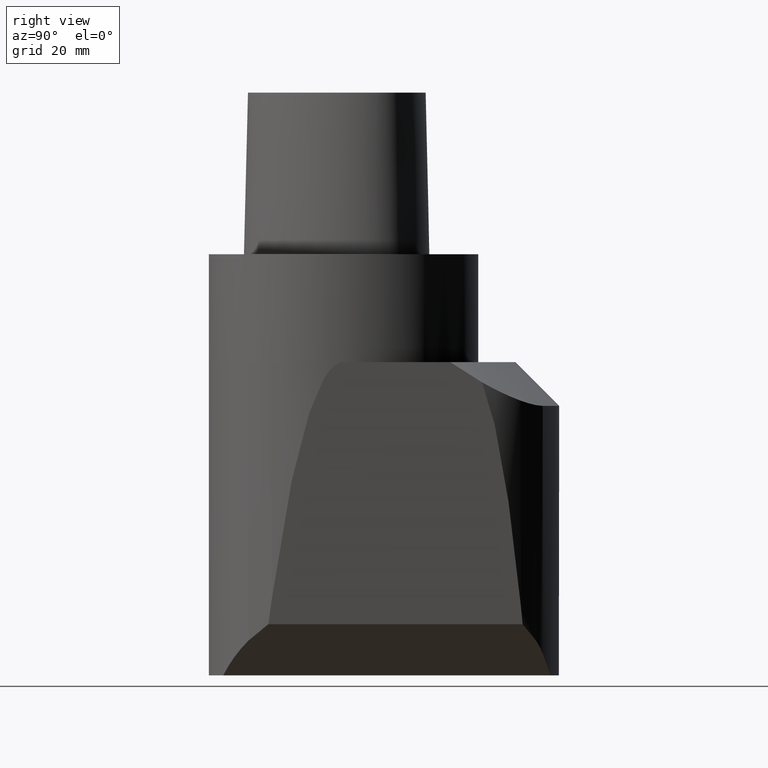
[diagram: clean part render]
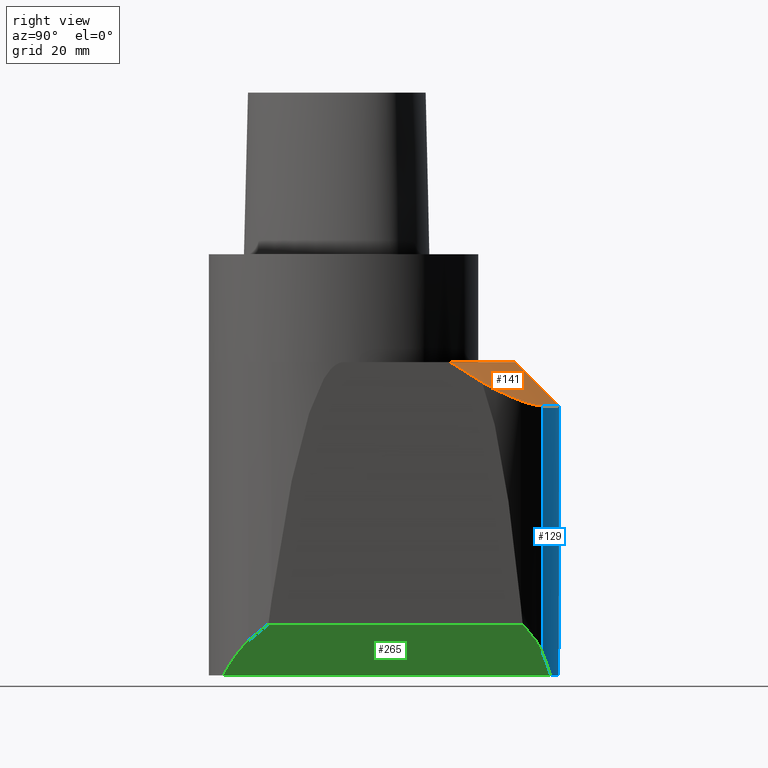
[diagram: same view with three faces highlighted in distinct colors, each labeled with its STEP entity id]
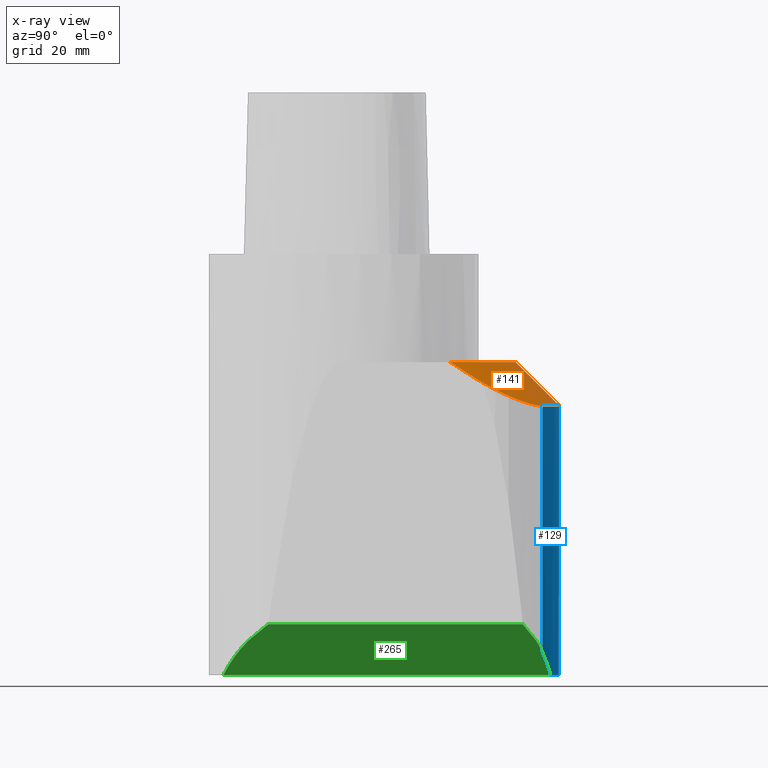
[diagram: x-ray of the same camera — body ghosted, the three highlighted faces saturated]
A machine part, right view with three faces highlighted in distinct colors.
The next image is the same camera in x-ray (body ghosted, the three faces saturated) — at least one of them is partly hidden behind the body in this view.
Their STEP definitions:

[orange] entity #141 — the highlighted conical surface has half-angle 45 deg.
#122=EDGE_CURVE('240[2]',#334,#327,#335,.T.);
#141=ADVANCED_FACE('240[2]',(#363),#364,.T.);
#143=EDGE_CURVE('240[2]',#366,#310,#367,.T.);
#154=EDGE_CURVE('240[2]',#382,#383,#384,.T.);
#159=EDGE_CURVE('240[2]',#334,#390,#391,.T.);
#189=EDGE_CURVE('240[2]',#430,#366,#431,.T.);
#191=EDGE_CURVE('240[2]',#340,#430,#433,.T.);
#239=EDGE_CURVE('240[2]',#383,#340,#491,.T.);
#241=EDGE_CURVE('240[2]',#327,#382,#493,.T.);
#255=EDGE_CURVE('240[2]',#310,#390,#510,.T.);
#310=VERTEX_POINT('',#566);
#327=VERTEX_POINT('',#638);
#334=VERTEX_POINT('',#648);
#335=B_SPLINE_CURVE_WITH_KNOTS('',3,(#649,#650,#651,#652,#653,#654,#655,#656,#657,#658,#659,#660,#661,#662,#663,#664,#665,#666,#667,#668,#669,#670),.UNSPECIFIED.,.F.,.F.,(4,2,2,2,2,2,2,2,2,2,4),(36.4231485541518,36.4233471363253,38.4603021409084,40.4972571454915,42.5342121500746,44.5711671546576,48.6450771638238,52.71898717299,55.2349505604476,57.7509139479051,58.3140038373045),.UNSPECIFIED.);
#340=VERTEX_POINT('',#677);
#363=FACE_OUTER_BOUND('',#722,.T.);
#364=CONICAL_SURFACE('',#723,57.5000000000002,0.785398163397456);
#366=VERTEX_POINT('',#726);
#367=B_SPLINE_CURVE_WITH_KNOTS('',3,(#727,#728,#729,#730,#731,#732),.UNSPECIFIED.,.F.,.F.,(4,2,4),(7.79050749938835E-014,1.69320901081214,3.66958667680222),.UNSPECIFIED.);
#382=VERTEX_POINT('',#813);
#383=VERTEX_POINT('',#814);
#384=(B_SPLINE_CURVE(2,(#816,#817,#818),.UNSPECIFIED.,.F.,.F.)B_SPLINE_CURVE_WITH_KNOTS((3,3),(16.6588998082918,22.4728619832828),.UNSPECIFIED.)RATIONAL_B_SPLINE_CURVE((1.00496236271585,1.00334711456662,1.0))BOUNDED_CURVE()REPRESENTATION_ITEM('')GEOMETRIC_REPRESENTATION_ITEM()CURVE());
#390=VERTEX_POINT('',#832);
#391=CIRCLE('',#833,64.0000000000002);
#430=VERTEX_POINT('',#901);
#431=B_SPLINE_CURVE_WITH_KNOTS('',3,(#902,#903,#904,#905,#906,#907,#908,#909,#910,#911,#912,#913,#914,#915),.UNSPECIFIED.,.F.,.F.,(4,2,2,2,2,2,4),(11.9216219311238,12.5798861849235,15.0958634219082,17.6118406588929,20.1278178958776,24.2017614135647,25.6110209828302),.UNSPECIFIED.);
#433=B_SPLINE_CURVE_WITH_KNOTS('',3,(#918,#919,#920,#921,#922,#923,#924,#925,#926),.UNSPECIFIED.,.F.,.F.,(4,3,2,4),(-3.41529228969309,0.0,3.78255755203956,7.76402577174886),.UNSPECIFIED.);
#491=CIRCLE('',#1458,51.0000000000002);
#493=B_SPLINE_CURVE_WITH_KNOTS('',3,(#1461,#1462,#1463,#1464,#1465,#1466,#1467,#1468),.UNSPECIFIED.,.F.,.F.,(4,2,2,4),(58.3216321938798,60.2734027898837,62.7896201586019,66.5642438074857),.UNSPECIFIED.);
#510=B_SPLINE_CURVE_WITH_KNOTS('',3,(#1493,#1494,#1495,#1496,#1497,#1498),.UNSPECIFIED.,.F.,.F.,(4,2,4),(32.3828474737101,34.3866202077822,36.4235919666244),.UNSPECIFIED.);
#566=CARTESIAN_POINT('',(28.29054136469,57.1745486429694,-44.790937783002));
#638=CARTESIAN_POINT('',(-38.8650636045326,43.4470624511728,-39.2935708686709));
#648=CARTESIAN_POINT('',(-24.6153846153862,59.0769230769235,-45.0000000000037));
#649=CARTESIAN_POINT('',(-24.6153846153767,59.0769230769236,-45.0000000000017));
#650=CARTESIAN_POINT('',(-24.615445717908,59.0768976178853,-45.0000000003234));
#651=CARTESIAN_POINT('',(-24.6155068202378,59.0768721586448,-45.0000000004843));
#652=CARTESIAN_POINT('',(-25.2423224980849,58.815696676964,-45.0000000004843));
#653=CARTESIAN_POINT('',(-25.868907106102,58.5245155998732,-44.9830750109901));
#654=CARTESIAN_POINT('',(-27.1080441426649,57.8833838449597,-44.9128061454171));
#655=CARTESIAN_POINT('',(-27.7205976650058,57.5334350745424,-44.8594641544699));
#656=CARTESIAN_POINT('',(-28.9194143070726,56.7786561725043,-44.7153968545533));
#657=CARTESIAN_POINT('',(-29.5057468973081,56.373786006701,-44.6246645698134));
#658=CARTESIAN_POINT('',(-30.6416537619001,55.5152931372474,-44.406338881082));
#659=CARTESIAN_POINT('',(-31.1912299627898,55.0616730052511,-44.2787453883167));
#660=CARTESIAN_POINT('',(-32.7717279264879,53.6401626190047,-43.8436872145184));
#661=CARTESIAN_POINT('',(-33.735266040463,52.6091211913375,-43.482711842329));
#662=CARTESIAN_POINT('',(-35.4358083829579,50.4655013336937,-42.6503431654704));
#663=CARTESIAN_POINT('',(-36.1729075321799,49.3530232473167,-42.1788853748937));
#664=CARTESIAN_POINT('',(-37.1738417149353,47.5727964473681,-41.3701317998467));
#665=CARTESIAN_POINT('',(-37.526737246582,46.8704259423907,-41.0383084299897));
#666=CARTESIAN_POINT('',(-38.1658184936294,45.4321058329714,-40.3313709975266));
#667=CARTESIAN_POINT('',(-38.4520130564005,44.6961607611856,-39.956255711054));
#668=CARTESIAN_POINT('',(-38.7583878011144,43.7826820531024,-39.4731787299872));
#669=CARTESIAN_POINT('',(-38.812622721241,43.6150992665946,-39.3838502520183));
#670=CARTESIAN_POINT('',(-38.8650523634497,43.4470613336168,-39.2935664207632));
#677=CARTESIAN_POINT('',(39.9999999999246,31.638584039223,-32.0000000000071));
#722=EDGE_LOOP('',(#1696,#1697,#1698,#1699,#1700,#1701,#1702,#1703,#1704));
#723=AXIS2_PLACEMENT_3D('',#1705,#1706,#1707);
#726=CARTESIAN_POINT('',(33.6636013357642,52.6333996928742,-43.4780987076547));
#727=CARTESIAN_POINT('',(33.6636013357642,52.6333996928742,-43.4780987076546));
#728=CARTESIAN_POINT('',(33.3011070229559,53.0401429254736,-43.6254369796464));
#729=CARTESIAN_POINT('',(32.6586001865985,53.7396399868975,-43.8735809754009));
#730=CARTESIAN_POINT('',(30.6810749666254,55.5227612965714,-44.4203078056542));
#731=CARTESIAN_POINT('',(29.5261634582089,56.3989908343032,-44.6438048196785));
#732=CARTESIAN_POINT('',(28.2905413646901,57.1745486429695,-44.7909377830022));
#813=CARTESIAN_POINT('',(-40.0000000000009,36.0000000000009,-34.8144961882987));
#814=CARTESIAN_POINT('',(-40.0000000000009,31.6385840391118,-32.0000000000028));
#816=CARTESIAN_POINT('',(-40.0000000000009,36.0000000000022,-34.8144961882996));
#817=CARTESIAN_POINT('',(-40.0000000000009,33.76073528817,-33.3165070713171));
#818=CARTESIAN_POINT('',(-40.0000000000009,31.6385840391112,-32.0000000000024));
#832=CARTESIAN_POINT('',(24.6153846153838,59.0769230769239,-45.000000000003));
#833=AXIS2_PLACEMENT_3D('',#1727,#1728,#1729);
#901=CARTESIAN_POINT('',(39.476915664123,41.0872978654076,-37.978881317847));
#902=CARTESIAN_POINT('',(39.4769022895486,41.0872981949386,-37.9788759307843));
#903=CARTESIAN_POINT('',(39.4354348908527,41.2868410700237,-38.0940341171368));
#904=CARTESIAN_POINT('',(39.3914564973516,41.4862241474422,-38.2080813814552));
#905=CARTESIAN_POINT('',(39.1672377574568,42.4463434906348,-38.752402598454));
#906=CARTESIAN_POINT('',(38.9527058004631,43.2033128153989,-39.1667904446922));
#907=CARTESIAN_POINT('',(38.4520036291537,44.6961690596028,-39.9562557749922));
#908=CARTESIAN_POINT('',(38.1658035792832,45.4321180306143,-40.3313706686812));
#909=CARTESIAN_POINT('',(37.526711383441,46.8704452652149,-41.0383072749407));
#910=CARTESIAN_POINT('',(37.1738103901352,47.5728189961114,-41.3701302113944));
#911=CARTESIAN_POINT('',(36.1728604857019,49.3530563328857,-42.1788840109718));
#912=CARTESIAN_POINT('',(35.4357500216311,50.4655415513507,-42.65034227017));
#913=CARTESIAN_POINT('',(34.291336774141,51.9081206667694,-43.2104936296004));
#914=CARTESIAN_POINT('',(33.9836529399982,52.2740050965731,-43.3478539634096));
#915=CARTESIAN_POINT('',(33.6633732594997,52.6332477042892,-43.4779569167343));
#918=CARTESIAN_POINT('',(39.9999999999246,31.638584039223,-32.0000000000071));
#919=CARTESIAN_POINT('',(39.949718347097,32.6285804211783,-32.5747219140447));
#920=CARTESIAN_POINT('',(39.8983594352101,33.6088729848618,-33.1617569553148));
#921=CARTESIAN_POINT('',(39.8462509803595,34.5776697358056,-33.7573593117445));
#922=CARTESIAN_POINT('',(39.7885390180173,35.6506465568507,-34.4170100840487));
#923=CARTESIAN_POINT('',(39.7295165732606,36.7167744274686,-35.0916397146551));
#924=CARTESIAN_POINT('',(39.6064662189535,38.8855882901264,-36.4981117002626));
#925=CARTESIAN_POINT('',(39.5421125400492,39.9912256680045,-37.2336776160171));
#926=CARTESIAN_POINT('',(39.4769156641219,41.0872978654076,-37.9788813178464));
#1458=AXIS2_PLACEMENT_3D('',#1841,#1842,#1843);
#1461=CARTESIAN_POINT('',(-38.8650523250574,43.4470613296989,-39.2935664060147));
#1462=CARTESIAN_POINT('',(-39.0467786168551,42.8646074249701,-38.9806204209285));
#1463=CARTESIAN_POINT('',(-39.2068174045358,42.2766865867339,-38.6561986316717));
#1464=CARTESIAN_POINT('',(-39.5224706462489,40.9252476761732,-37.8900422133055));
#1465=CARTESIAN_POINT('',(-39.6634266687771,40.1601217882488,-37.4415101156143));
#1466=CARTESIAN_POINT('',(-39.9249772408726,38.2534097911671,-36.2853945824886));
#1467=CARTESIAN_POINT('',(-39.9995566059418,37.1139766974781,-35.5594502190855));
#1468=CARTESIAN_POINT('',(-39.9998170923362,36.0000488887121,-34.8144230283649));
#1493=CARTESIAN_POINT('',(28.2905413103789,57.1745485658759,-44.7909377332614));
#1494=CARTESIAN_POINT('',(27.7004760991929,57.5449079564465,-44.8611981268565));
#1495=CARTESIAN_POINT('',(27.0977874140493,57.8886829690269,-44.9133788084247));
#1496=CARTESIAN_POINT('',(25.8687358882004,58.5245913605404,-44.9830750201391));
#1497=CARTESIAN_POINT('',(25.2421451565657,58.8157728514315,-45.000000000003));
#1498=CARTESIAN_POINT('',(24.6153846153835,59.076923076924,-45.000000000003));
#1696=ORIENTED_EDGE('',*,*,#191,.T.);
#1697=ORIENTED_EDGE('',*,*,#189,.T.);
#1698=ORIENTED_EDGE('',*,*,#143,.T.);
#1699=ORIENTED_EDGE('',*,*,#255,.T.);
#1700=ORIENTED_EDGE('',*,*,#159,.F.);
#1701=ORIENTED_EDGE('',*,*,#122,.T.);
#1702=ORIENTED_EDGE('',*,*,#241,.T.);
#1703=ORIENTED_EDGE('',*,*,#154,.T.);
#1704=ORIENTED_EDGE('',*,*,#239,.T.);
#1705=CARTESIAN_POINT('',(2.35744508835881E-015,-1.13686837721616E-013,-38.5000000000025));
#1706=DIRECTION('',(6.12323399573677E-017,-3.0538777245272E-015,-1.0));
#1707=DIRECTION('',(1.82168926285713E-031,1.0,-3.0538777245272E-015));
#1727=CARTESIAN_POINT('',(2.7554552980817E-015,-1.70530256582424E-013,-45.0000000000025));
#1728=DIRECTION('',(6.12323399573677E-017,-3.0538777245272E-015,-1.0));
#1729=DIRECTION('',(1.82168926285713E-031,1.0,-3.0538777245272E-015));
#1841=CARTESIAN_POINT('',(1.95943487863593E-015,-1.13686837721616E-013,-32.0000000000026));
#1842=DIRECTION('',(6.12323399573676E-017,-3.0538777245272E-015,-1.0));
#1843=DIRECTION('',(1.82168926285713E-031,1.0,-3.0538777245272E-015));

[blue] entity #129 — the highlighted cylindrical surface (partial cylindrical patch) has radius 64 mm, axis along (0, -0, -1).
#129=ADVANCED_FACE('240[2]',(#344),#345,.T.);
#159=EDGE_CURVE('240[2]',#334,#390,#391,.T.);
#161=EDGE_CURVE('240[2]',#393,#352,#394,.T.);
#182=EDGE_CURVE('240[2]',#393,#334,#421,.T.);
#187=EDGE_CURVE('240[2]',#317,#352,#428,.T.);
#223=EDGE_CURVE('240[2]',#317,#390,#473,.T.);
#317=VERTEX_POINT('',#576);
#334=VERTEX_POINT('',#648);
#344=FACE_OUTER_BOUND('',#683,.T.);
#345=CYLINDRICAL_SURFACE('',#684,64.0000000000003);
#352=VERTEX_POINT('',#693);
#390=VERTEX_POINT('',#832);
#391=CIRCLE('',#833,64.0000000000002);
#393=VERTEX_POINT('',#836);
#394=CIRCLE('',#837,64.0000000000005);
#421=LINE('',#888,#889);
#428=ELLIPSE('',#898,90.5096678554264,64.0000000000003);
#473=LINE('',#1047,#1048);
#576=CARTESIAN_POINT('',(24.6153846153831,59.0769230769245,-118.384615337473));
#648=CARTESIAN_POINT('',(-24.6153846153862,59.0769230769235,-45.0000000000037));
#683=EDGE_LOOP('',(#1679,#1680,#1681,#1682,#1683));
#684=AXIS2_PLACEMENT_3D('',#1684,#1685,#1686);
#693=CARTESIAN_POINT('',(17.9999999329058,61.4166101508002,-125.000000000003));
#832=CARTESIAN_POINT('',(24.6153846153838,59.0769230769239,-45.000000000003));
#833=AXIS2_PLACEMENT_3D('',#1727,#1728,#1729);
#836=CARTESIAN_POINT('',(-24.6153846153862,59.0769230769235,-125.000000000003));
#837=AXIS2_PLACEMENT_3D('',#1730,#1731,#1732);
#888=CARTESIAN_POINT('',(-24.6153846153862,59.0769230769235,-125.000000000003));
#889=VECTOR('',#1764,1.0);
#898=AXIS2_PLACEMENT_3D('',#1771,#1772,#1773);
#1047=CARTESIAN_POINT('',(24.6153846153831,59.0769230769245,-125.000000000003));
#1048=VECTOR('',#1819,1.0);
#1679=ORIENTED_EDGE('',*,*,#182,.T.);
#1680=ORIENTED_EDGE('',*,*,#159,.T.);
#1681=ORIENTED_EDGE('',*,*,#223,.F.);
#1682=ORIENTED_EDGE('',*,*,#187,.T.);
#1683=ORIENTED_EDGE('',*,*,#161,.F.);
#1684=CARTESIAN_POINT('',(5.2047488963764E-015,-2.8421709430404E-013,-85.0000000000025));
#1685=DIRECTION('',(6.12323399573676E-017,-3.0538777245272E-015,-1.0));
#1686=DIRECTION('',(1.82168926285713E-031,1.0,-3.0538777245272E-015));
#1727=CARTESIAN_POINT('',(2.7554552980817E-015,-1.70530256582424E-013,-45.0000000000025));
#1728=DIRECTION('',(6.12323399573677E-017,-3.0538777245272E-015,-1.0));
#1729=DIRECTION('',(1.82168926285713E-031,1.0,-3.0538777245272E-015));
#1730=CARTESIAN_POINT('',(7.65404249467111E-015,-3.97903932025656E-013,-125.000000000003));
#1731=DIRECTION('',(6.12323399573676E-017,-3.0538777245272E-015,-1.0));
#1732=DIRECTION('',(1.82168926285713E-031,1.0,-3.0538777245272E-015));
#1764=DIRECTION('',(-6.12323399573677E-017,-1.22464679914735E-016,1.0));
#1771=CARTESIAN_POINT('',(8.75622460647214E-015,-4.54747350886464E-013,-142.999999878635));
#1772=DIRECTION('',(-0.707106780120515,-8.65956057541007E-017,0.70710678225258));
#1773=DIRECTION('',(0.70710678225258,2.1594176446722E-015,0.707106780120515));
#1819=DIRECTION('',(-6.12323399573677E-017,-1.22464679914735E-016,1.0));

[green] entity #265 — the highlighted planar face has unit normal (-0.7071, -0, 0.7071).
#112=EDGE_CURVE('240[2]',#309,#317,#318,.T.);
#134=EDGE_CURVE('240[2]',#352,#353,#354,.T.);
#176=EDGE_CURVE('240[2]',#353,#414,#415,.T.);
#178=EDGE_CURVE('240[2]',#414,#411,#417,.T.);
#187=EDGE_CURVE('240[2]',#317,#352,#428,.T.);
#195=EDGE_CURVE('240[2]',#309,#438,#439,.F.);
#208=EDGE_CURVE('240[2]',#411,#438,#456,.F.);
#265=ADVANCED_FACE('240[2]',(#522),#523,.F.);
#309=VERTEX_POINT('',#565);
#317=VERTEX_POINT('',#576);
#318=ELLIPSE('',#577,35.3553390060258,25.0);
#352=VERTEX_POINT('',#693);
#353=VERTEX_POINT('',#694);
#354=LINE('',#695,#696);
#411=VERTEX_POINT('',#859);
#414=VERTEX_POINT('',#870);
#415=ELLIPSE('',#871,56.5685424096412,40.0);
#417=B_SPLINE_CURVE_WITH_KNOTS('',3,(#874,#875,#876,#877,#878,#879,#880,#881),.UNSPECIFIED.,.F.,.F.,(4,2,2,4),(182.745728297254,183.936771665328,185.787715841536,186.29989633861),.UNSPECIFIED.);
#428=ELLIPSE('',#898,90.5096678554264,64.0000000000003);
#438=VERTEX_POINT('',#934);
#439=B_SPLINE_CURVE_WITH_KNOTS('',3,(#935,#936,#937,#938,#939,#940,#941,#942,#943,#944,#945,#946),.UNSPECIFIED.,.F.,.F.,(4,2,2,2,2,4),(179.824661305299,179.955119809875,181.332118004802,183.966017951121,184.086968040956,184.087166453046),.UNSPECIFIED.);
#456=LINE('',#1022,#1023);
#522=FACE_OUTER_BOUND('',#1610,.T.);
#523=PLANE('',#1611);
#565=CARTESIAN_POINT('',(28.29054136469,57.1745486429694,-114.709458599247));
#576=CARTESIAN_POINT('',(24.6153846153831,59.0769230769245,-118.384615337473));
#577=AXIS2_PLACEMENT_3D('',#1666,#1667,#1668);
#693=CARTESIAN_POINT('',(17.9999999329058,61.4166101508002,-125.000000000003));
#694=CARTESIAN_POINT('',(17.9999999329061,-35.721142232791,-125.000000000003));
#695=CARTESIAN_POINT('',(17.9999999329063,-65.1225706344801,-125.000000000003));
#696=VECTOR('',#1693,1.0);
#859=CARTESIAN_POINT('',(33.1927473655551,-22.3213156473373,-109.807252613163));
#870=CARTESIAN_POINT('',(28.2905413646907,-28.2779997399503,-114.709458599246));
#871=AXIS2_PLACEMENT_3D('',#1760,#1761,#1762);
#874=CARTESIAN_POINT('',(28.2905413646907,-28.2779997399503,-114.709458599246));
#875=CARTESIAN_POINT('',(28.5598027757183,-28.0086189083271,-114.440197189031));
#876=CARTESIAN_POINT('',(29.0604000396918,-27.5020726044087,-113.939599927107));
#877=CARTESIAN_POINT('',(30.6684296191253,-25.7204981679521,-112.331570352522));
#878=CARTESIAN_POINT('',(31.5961979475133,-24.5753728153209,-111.403802026395));
#879=CARTESIAN_POINT('',(32.7185357376522,-23.0145741105321,-110.28146423964));
#880=CARTESIAN_POINT('',(32.9580480758712,-22.6702994512538,-110.041951902139));
#881=CARTESIAN_POINT('',(33.1927473655551,-22.3213156473373,-109.807252613163));
#898=AXIS2_PLACEMENT_3D('',#1771,#1772,#1773);
#934=CARTESIAN_POINT('',(33.1927473655523,53.147149727207,-109.807252613168));
#935=CARTESIAN_POINT('',(33.1927473655523,53.147149727207,-109.807252613168));
#936=CARTESIAN_POINT('',(33.1498259533869,53.1926770678901,-109.850174025204));
#937=CARTESIAN_POINT('',(33.1049088959374,53.2399815383754,-109.895091082516));
#938=CARTESIAN_POINT('',(32.5615243132467,53.8075092873478,-110.438475663568));
#939=CARTESIAN_POINT('',(32.0578685368317,54.2896110499142,-110.942131438464));
#940=CARTESIAN_POINT('',(30.5377439078639,55.6299899180698,-112.462256062849));
#941=CARTESIAN_POINT('',(29.4994959095945,56.4046772962459,-113.500504057988));
#942=CARTESIAN_POINT('',(28.3885253405872,57.1128093519813,-114.611474623645));
#943=CARTESIAN_POINT('',(28.3396836585067,57.143702924702,-114.660316305579));
#944=CARTESIAN_POINT('',(28.2907018061625,57.1744479386976,-114.709298157775));
#945=CARTESIAN_POINT('',(28.2906215855096,57.1744982910994,-114.709378378428));
#946=CARTESIAN_POINT('',(28.29054136469,57.1745486429694,-114.709458599247));
#1022=CARTESIAN_POINT('',(33.1927473655551,-162.24514126896,-109.807252613163));
#1023=VECTOR('',#1797,1.0);
#1610=EDGE_LOOP('',(#1880,#1881,#1882,#1883,#1884,#1885,#1886));
#1611=AXIS2_PLACEMENT_3D('',#1887,#1888,#1889);
#1666=CARTESIAN_POINT('',(14.9999999999992,36.0000000000009,-127.999999923864));
#1667=DIRECTION('',(-0.707106780120515,-8.65956057541007E-017,0.70710678225258));
#1668=DIRECTION('',(-0.70710678225258,1.73191211247099E-016,-0.707106780120515));
#1693=DIRECTION('',(3.5527136895126E-015,-1.0,3.43024899888574E-015));
#1760=CARTESIAN_POINT('',(-8.43895058305648E-013,8.5265128291212E-013,-142.999999878636));
#1761=DIRECTION('',(-0.707106780120515,-8.65956057541007E-017,0.70710678225258));
#1762=DIRECTION('',(-0.70710678225258,1.73191211247099E-016,-0.707106780120515));
#1771=CARTESIAN_POINT('',(8.75622460647214E-015,-4.54747350886464E-013,-142.999999878635));
#1772=DIRECTION('',(-0.707106780120515,-8.65956057541007E-017,0.70710678225258));
#1773=DIRECTION('',(0.70710678225258,2.1594176446722E-015,0.707106780120515));
#1797=DIRECTION('',(-4.7939441633458E-032,-1.0,-1.22464679914735E-016));
#1880=ORIENTED_EDGE('',*,*,#176,.F.);
#1881=ORIENTED_EDGE('',*,*,#134,.F.);
#1882=ORIENTED_EDGE('',*,*,#187,.F.);
#1883=ORIENTED_EDGE('',*,*,#112,.F.);
#1884=ORIENTED_EDGE('',*,*,#195,.T.);
#1885=ORIENTED_EDGE('',*,*,#208,.F.);
#1886=ORIENTED_EDGE('',*,*,#178,.F.);
#1887=CARTESIAN_POINT('',(24.7801156812693,-162.24514126896,-118.219884272083));
#1888=DIRECTION('',(-0.707106780120515,-8.65956057541007E-017,0.70710678225258));
#1889=DIRECTION('',(-1.2246468028399E-016,1.0,0.0));